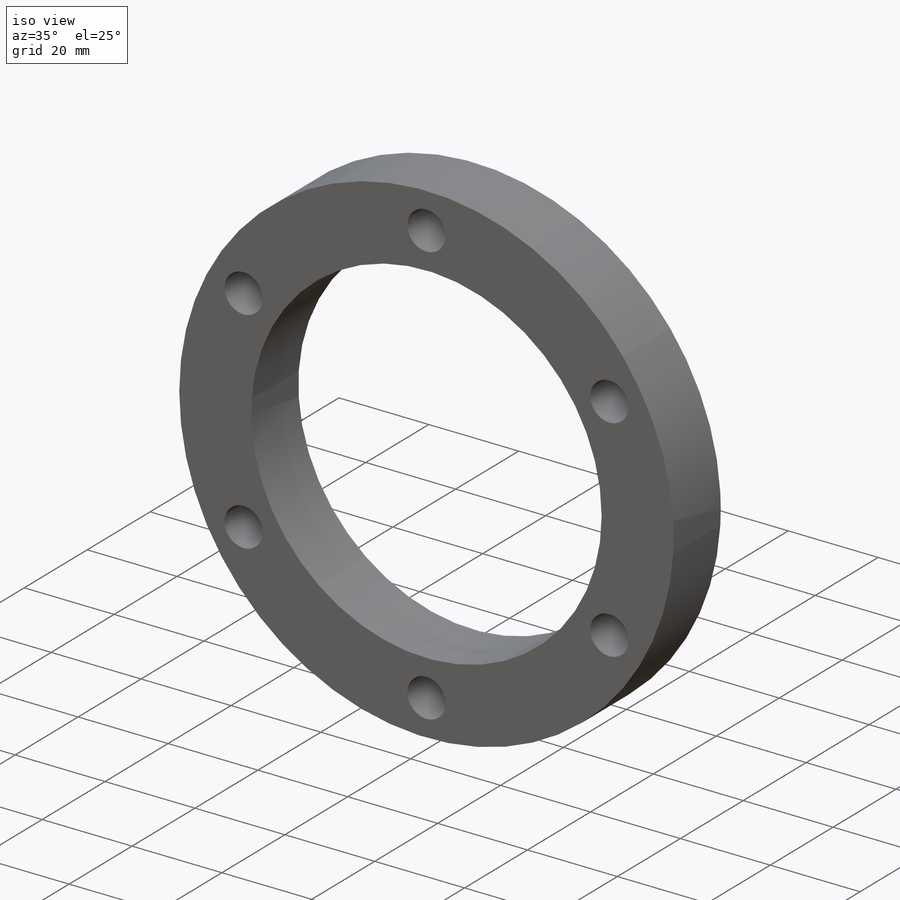
[diagram: iso view]
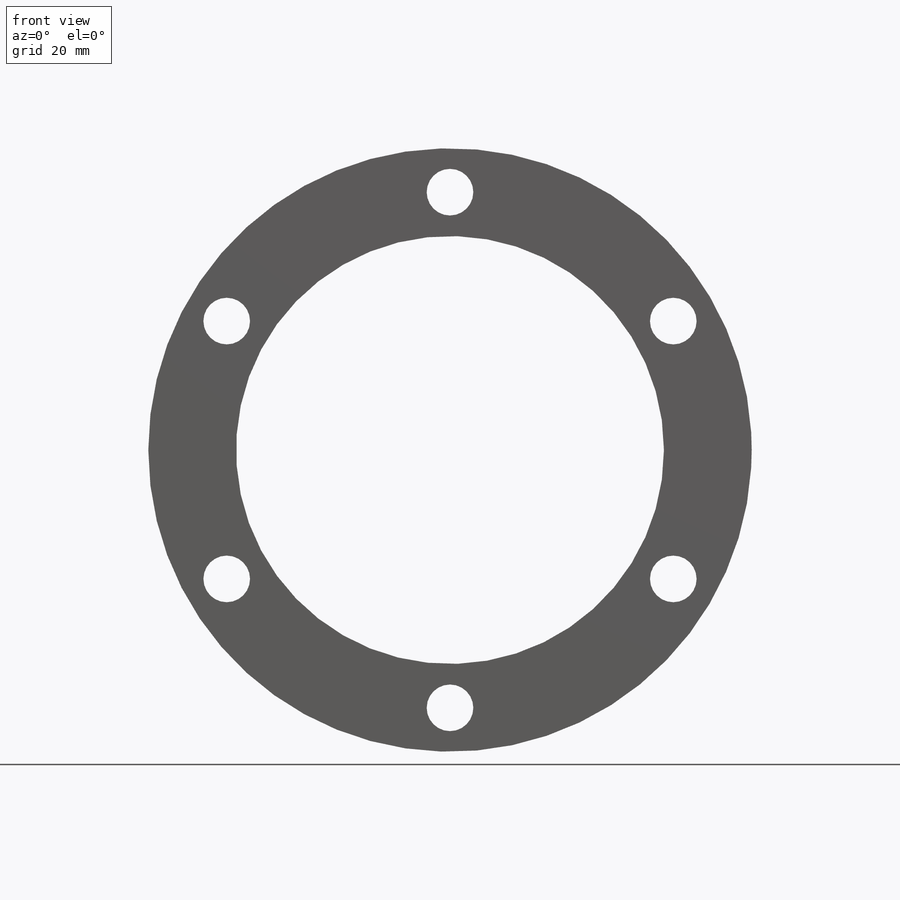
[diagram: front view]
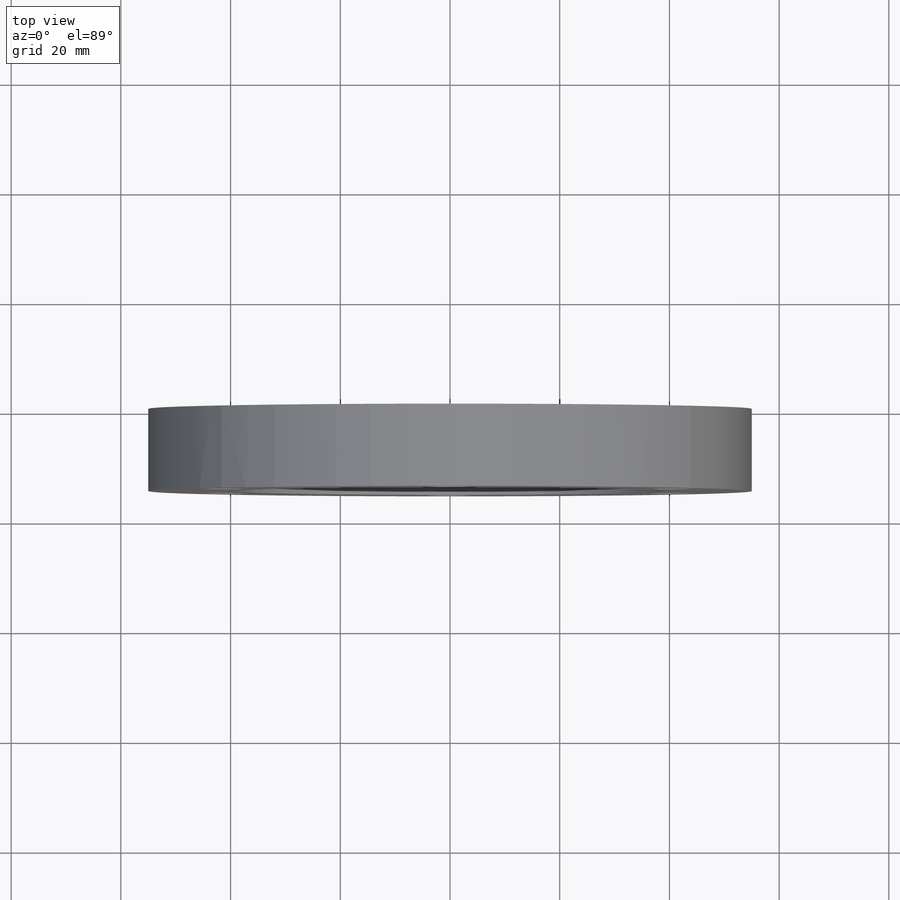
[diagram: top view]
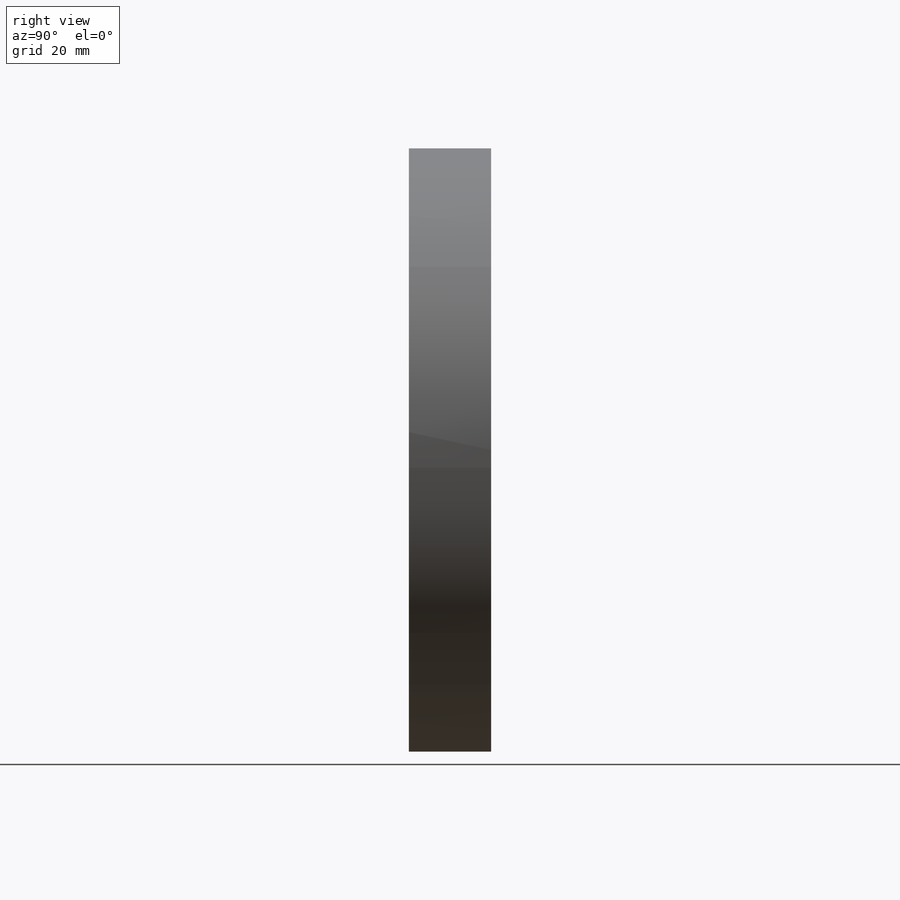
[diagram: right view]
SOLIDWORKS PART (.sldprt)
format: sldprt  version: not decoded by parser v0  size: 390,144 bytes
history: native  units: mm
features: sketch x4, plane x3, material x1, extrude x1, hole x1, thread x1, pattern_circular x1, cut_extrude x1 (+8 scaffold rows collapsed)
feature tree (21):
  scaffold x8  (default folders/planes/origin — collapsed)
  material  "Matériau <non spécifié>"
  plane  "Plan de face"
  plane  "Plan de dessus"
  plane  "Plan de droite"
  sketch  "Esquisse1"  dims[D1=110.0mm]
  extrude  "Boss.-Extru.1"  Depth=15mm
  hole  "Trou taraudé M101"  Diameter=8.5mm Depth=15mm
  sketch  "Esquisse3"  dims[D1=94.0mm]
  sketch  "Esquisse2"  dims[hole-wizard template sketch: 59 standard entries collapsed; hole parameters kept: c18.Diamètre du trou pour taraudage jusqu'au prochain=8.5mm c18.Profondeur du trou pour taraudage jusqu'au prochain=15.0mm]
  thread  "Filetage de perçage1"  Diameter=10mm  [1 undecoded]
  pattern_circular  "Répétition circulaire1"  Count=6 Angle=360deg
  sketch  "Esquisse4"  dims[c1.D1=78.0mm c1.D2=8.5mm c1.D3=8.5mm c2.D2=3.75mm c2.D3=3.75mm c2.D4=3.75mm]
  cut_extrude  "Enlèv. mat.-Extru.1"  [1 undecoded]
decode coverage: 8 of 9 modeling features carry decoded parameters
note: ~ marks probable driven/reference dimensions
note: 2 parameter values undecoded
note: suppression state not decoded; provenance and decode notes live in map.json
